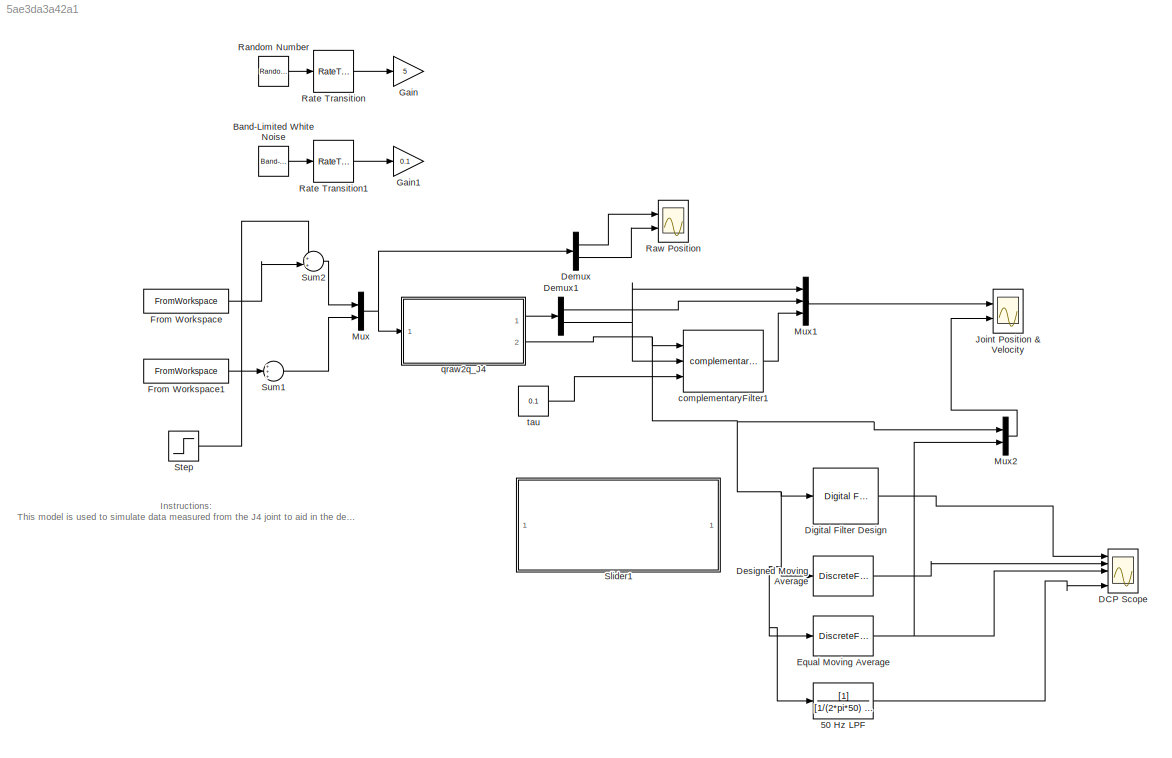
MODEL slx_5ae3da3a42a1
KIND model
CONFIG AbsTol = auto
CONFIG EnableMultiTasking = off
CONFIG FixedStep = auto
CONFIG MaxStep = auto
CONFIG MinStep = auto
CONFIG RelTol = 1e-3
CONFIG SampleTimeConstraint = Unconstrained
CONFIG Solver = VariableStepAuto
CONFIG SolverName = VariableStepAuto
CONFIG StartTime = 0.0
CONFIG StopTime = 100
BLOCK [TransferFcn] 50 Hz LPF
  Denominator = [1/(2*pi*50) 1]
BLOCK [Reference] Band-Limited White Noise  REF=simulink/Sources/Band-Limited
White Noise
  Commented = on
  Ports = [0, 1]
  SourceBlock = simulink/Sources/Band-Limited\nWhite Noise
  SourceType = Band-Limited White Noise.
BLOCK [Scope] DCP Scope
  NumInputPorts = 5
  Ports = [5]
  ScopeSpecificationString = Simulink.scopes.TimeScopeBlockCfg('CurrentConfiguration', extmgr.ConfigurationSet(extmgr.Configuration('Core','General UI',true,'FigureColor',[1 1 1]),extmgr.Configuration('Core','Source UI',true),extmgr.Configuration('Sources','WiredSimulink',true,'DataLoggingVariableName','ScopeData1'),extmgr.Configuration('Visuals','Time Domain',true,'SerializedDisplays',{struct('MinYLimReal','-815.04676','MaxY...<+1994ch>
BLOCK [Demux] Demux
  DisplayOption = bar
  Outputs = 2
  Ports = [1, 2]
BLOCK [Demux] Demux1
  DisplayOption = bar
  Outputs = 2
  Ports = [1, 2]
BLOCK [DiscreteFir] Designed Moving Average
  Coefficients = filtNum
  Commented = on
  InputPortMap = u0
  InputProcessing = Columns as channels (frame based)
  OutputPortMap = o0
  Ports = [1, 1]
BLOCK [Reference] Digital Filter Design  REF=dsparch4/Digital
Filter Design
  Ports = [1, 1]
  SourceBlock = dsparch4/Digital\nFilter Design
  SourceType = Digital Filter Design
  UserDataPersistent = on
BLOCK [DiscreteFir] Equal Moving Average
  Coefficients = repmat([1/20],1,20)
  InputPortMap = u0
  InputProcessing = Columns as channels (frame based)
  OutputPortMap = o0
  Ports = [1, 1]
BLOCK [FromWorkspace] From Workspace
  Interpolate = off
  OutDataTypeStr = double
  OutputAfterFinalValue = Holding final value
  SampleTime = .001
  VariableName = relEncoderData
BLOCK [FromWorkspace] From Workspace1
  Interpolate = off
  OutputAfterFinalValue = Holding final value
  SampleTime = .001
  VariableName = absEncoderData
  ZeroCross = on
BLOCK [Gain] Gain
  Commented = on
  Gain = 5
  OutDataTypeStr = Inherit: Inherit via internal rule
  ParamDataTypeStr = Inherit: Inherit via internal rule
  SaturateOnIntegerOverflow = off
BLOCK [Gain] Gain1
  Commented = on
  Gain = 0.1
  OutDataTypeStr = Inherit: Inherit via internal rule
  ParamDataTypeStr = Inherit: Inherit via internal rule
  SaturateOnIntegerOverflow = off
BLOCK [Scope] Joint Position & Velocity
  NumInputPorts = 2
  Ports = [2]
  ScopeSpecificationString = Simulink.scopes.TimeScopeBlockCfg('CurrentConfiguration', extmgr.ConfigurationSet(extmgr.Configuration('Core','General UI',true,'FigureColor',[1 1 1]),extmgr.Configuration('Core','Source UI',true),extmgr.Configuration('Sources','WiredSimulink',true,'DataLoggingVariableName','ScopeData1'),extmgr.Configuration('Visuals','Time Domain',true,'SerializedDisplays',{struct('MinYLimReal','1503.3013','MaxYL...<+2495ch>
BLOCK [Mux] Mux
  DisplayOption = bar
  Inputs = 2
  Ports = [2, 1]
BLOCK [Mux] Mux1
  DisplayOption = bar
  Inputs = 3
  Ports = [3, 1]
BLOCK [Mux] Mux2
  DisplayOption = bar
  Inputs = 2
  Ports = [2, 1]
BLOCK [RandomNumber] Random Number
  Commented = on
  SampleTime = 10
BLOCK [RateTransition] Rate Transition
  Commented = on
BLOCK [RateTransition] Rate Transition1
  Commented = on
BLOCK [Scope] Raw Position
  NumInputPorts = 2
  Ports = [2]
  ScopeSpecificationString = Simulink.scopes.TimeScopeBlockCfg('CurrentConfiguration', extmgr.ConfigurationSet(extmgr.Configuration('Core','General UI',true,'FigureColor',[1 1 1]),extmgr.Configuration('Core','Source UI',true),extmgr.Configuration('Sources','WiredSimulink',true,'DataLoggingVariableName','ScopeData1'),extmgr.Configuration('Visuals','Time Domain',true,'SerializedDisplays',{struct('MinYLimReal','-92116.125','MaxY...<+2416ch>
BLOCK [SubSystem] Slider1
  DialogController = hmiCreateDDGDialog
  IsWebBlock = on
  MaskHideContents = on
  Ports = []
  RequestExecContextInheritance = off
  Variant = off
BLOCK [Step] Step
  After = 10000
  Time = 40
BLOCK [Sum] Sum1
  IconShape = round
  InputSameDT = off
  Inputs = +++
  OutDataTypeStr = Inherit: Inherit via internal rule
  Ports = [3, 1]
  SaturateOnIntegerOverflow = off
BLOCK [Sum] Sum2
  IconShape = round
  InputSameDT = off
  Inputs = ++|
  OutDataTypeStr = Inherit: Inherit via internal rule
  Ports = [2, 1]
  SaturateOnIntegerOverflow = off
BLOCK [Reference] complementaryFilter1  REF=dcpctrl/complementaryFilter
  Ports = [3, 1]
  SourceBlock = dcpctrl/complementaryFilter
  SourceType = SubSystem
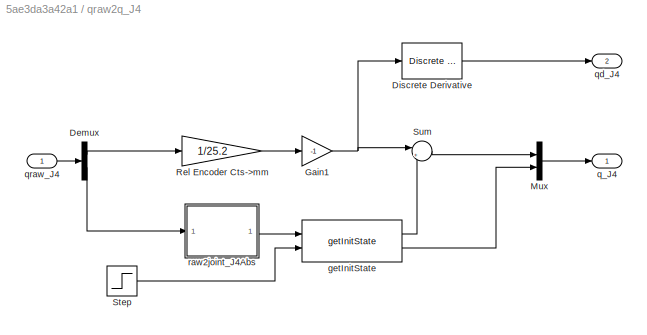
BLOCK [SubSystem] qraw2q_J4
  Ports = [1, 2]
  RequestExecContextInheritance = off
  Variant = off
BLOCK [Demux] qraw2q_J4/Demux
  DisplayOption = bar
  Outputs = 2
  Ports = [1, 2]
BLOCK [Reference] qraw2q_J4/Discrete Derivative  REF=simulink/Discrete/Discrete Derivative
  Ports = [1, 1]
  SourceBlock = simulink/Discrete/Discrete Derivative
  SourceType = Discrete Derivative
BLOCK [Gain] qraw2q_J4/Gain1
  Gain = -1
  OutDataTypeStr = Inherit: Inherit via internal rule
  ParamDataTypeStr = Inherit: Inherit via internal rule
  SaturateOnIntegerOverflow = off
BLOCK [Mux] qraw2q_J4/Mux
  DisplayOption = bar
  Inputs = 2
  Ports = [2, 1]
BLOCK [Gain] qraw2q_J4/Rel Encoder Cts->mm
  Gain = 1/25.2
  OutDataTypeStr = Inherit: Inherit via internal rule
  ParamDataTypeStr = Inherit: Inherit via internal rule
  SaturateOnIntegerOverflow = off
BLOCK [Step] qraw2q_J4/Step
  SampleTime = 0
  Time = 0
BLOCK [Sum] qraw2q_J4/Sum
  IconShape = round
  InputSameDT = off
  Inputs = |++
  OutDataTypeStr = Inherit: Inherit via internal rule
  Ports = [2, 1]
  SaturateOnIntegerOverflow = off
BLOCK [Reference] qraw2q_J4/getInitState  REF=dcpctrl/getInitState
  Ports = [2, 2]
  SourceBlock = dcpctrl/getInitState
  SourceType = SubSystem
BLOCK [Outport] qraw2q_J4/q_J4
  IconDisplay = Port number
BLOCK [Outport] qraw2q_J4/qd_J4
  IconDisplay = Port number
  Port = 2
BLOCK [Inport] qraw2q_J4/qraw_J4
  IconDisplay = Port number
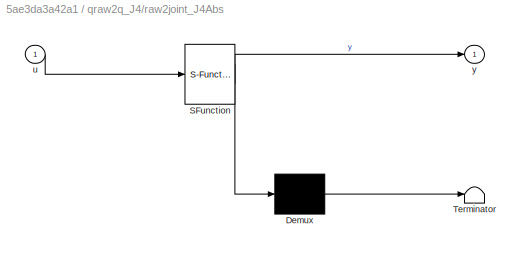
BLOCK [SubSystem] qraw2q_J4/raw2joint_J4Abs
  ErrorFcn = Stateflow.Translate.translate
  PermitHierarchicalResolution = ExplicitOnly
  Ports = [1, 1]
  RequestExecContextInheritance = off
  SFBlockType = MATLAB Function
  TreatAsAtomicUnit = on
  Variant = off
BLOCK [Demux] qraw2q_J4/raw2joint_J4Abs/ Demux 
  Outputs = 1
  Ports = [1, 1]
BLOCK [S-Function] qraw2q_J4/raw2joint_J4Abs/ SFunction 
  EnableBusSupport = on
  FunctionName = sf_sfun
  Parameters = robot
  PortCounts = [1 2]
  Ports = [1, 2]
  SFcnIsStateOwnerBlock = off
  SFunctionDeploymentMode = off
  Tag = Stateflow S-Function j4SimTestBench 2
BLOCK [Terminator] qraw2q_J4/raw2joint_J4Abs/ Terminator 
BLOCK [Inport] qraw2q_J4/raw2joint_J4Abs/u
  IconDisplay = Port number
BLOCK [Outport] qraw2q_J4/raw2joint_J4Abs/y
  IconDisplay = Port number
BLOCK [Constant] tau
  Value = 0.1
ANNOTATION (root): Instructions: This model is used to simulate data measured from the J4 joint to aid in the development of new input filters, etc. relEncoderData and absEncoderData should exist in the MATLAB workspace before running.
LINE 50 Hz LPF:1 -> DCP Scope:5
LINE Band-Limited White Noise:1 -> Rate Transition1:1
LINE Demux1:1 -> Mux1:2
NET Demux1:2 -> Mux1:1, complementaryFilter1:2
LINE Demux:1 -> Raw Position:1
LINE Demux:2 -> Raw Position:2
LINE Designed Moving Average:1 -> DCP Scope:2
LINE Digital Filter Design:1 -> DCP Scope:1
NET Equal Moving Average:1 -> DCP Scope:3, Mux2:2
LINE From Workspace1:1 -> Sum1:2
LINE From Workspace:1 -> Sum2:2
LINE Mux1:1 -> Joint Position & Velocity:1
LINE Mux2:1 -> Joint Position & Velocity:2
NET Mux:1 -> Demux:1, qraw2q_J4:1
LINE Random Number:1 -> Rate Transition:1
LINE Rate Transition1:1 -> Gain1:1
LINE Rate Transition:1 -> Gain:1
LINE Step:1 -> Sum2:1
LINE Sum1:1 -> Mux:2
LINE Sum2:1 -> Mux:1
LINE complementaryFilter1:1 -> Mux1:3
LINE qraw2q_J4/Demux:1 -> qraw2q_J4/Rel Encoder Cts->mm:1
LINE qraw2q_J4/Demux:2 -> qraw2q_J4/raw2joint_J4Abs:1
LINE qraw2q_J4/Discrete Derivative:1 -> qraw2q_J4/qd_J4:1
NET qraw2q_J4/Gain1:1 -> qraw2q_J4/Discrete Derivative:1, qraw2q_J4/Sum:1
LINE qraw2q_J4/Mux:1 -> qraw2q_J4/q_J4:1
LINE qraw2q_J4/Rel Encoder Cts->mm:1 -> qraw2q_J4/Gain1:1
LINE qraw2q_J4/Step:1 -> qraw2q_J4/getInitState:2
LINE qraw2q_J4/Sum:1 -> qraw2q_J4/Mux:1
LINE qraw2q_J4/getInitState:1 -> qraw2q_J4/Sum:2
LINE qraw2q_J4/getInitState:2 -> qraw2q_J4/Mux:2
LINE qraw2q_J4/qraw_J4:1 -> qraw2q_J4/Demux:1
LINE qraw2q_J4/raw2joint_J4Abs:1 -> qraw2q_J4/getInitState:1
LINE qraw2q_J4:1 -> Demux1:1
NET qraw2q_J4:2 -> 50 Hz LPF:1, Designed Moving Average:1, Digital Filter Design:1, Equal Moving Average:1, Mux2:1, complementaryFilter1:1
LINE tau:1 -> complementaryFilter1:3
note: NET lines group one-source signal fan-out (src -> all destinations, sorted); 1:1 wires keep LINE
CHART qraw2q_J4/raw2joint_J4Abs states=1 transitions=1
  STATE_LABEL 'eML_blk_kernel()'
  STATE_LABEL "SCRIPT:\nfunction y = fcn(u,robot)\n\n%#codegen\n\ny_temp = raw2jointJ4Abs_at40gw(robot,u');\ny = y_temp';\n"
